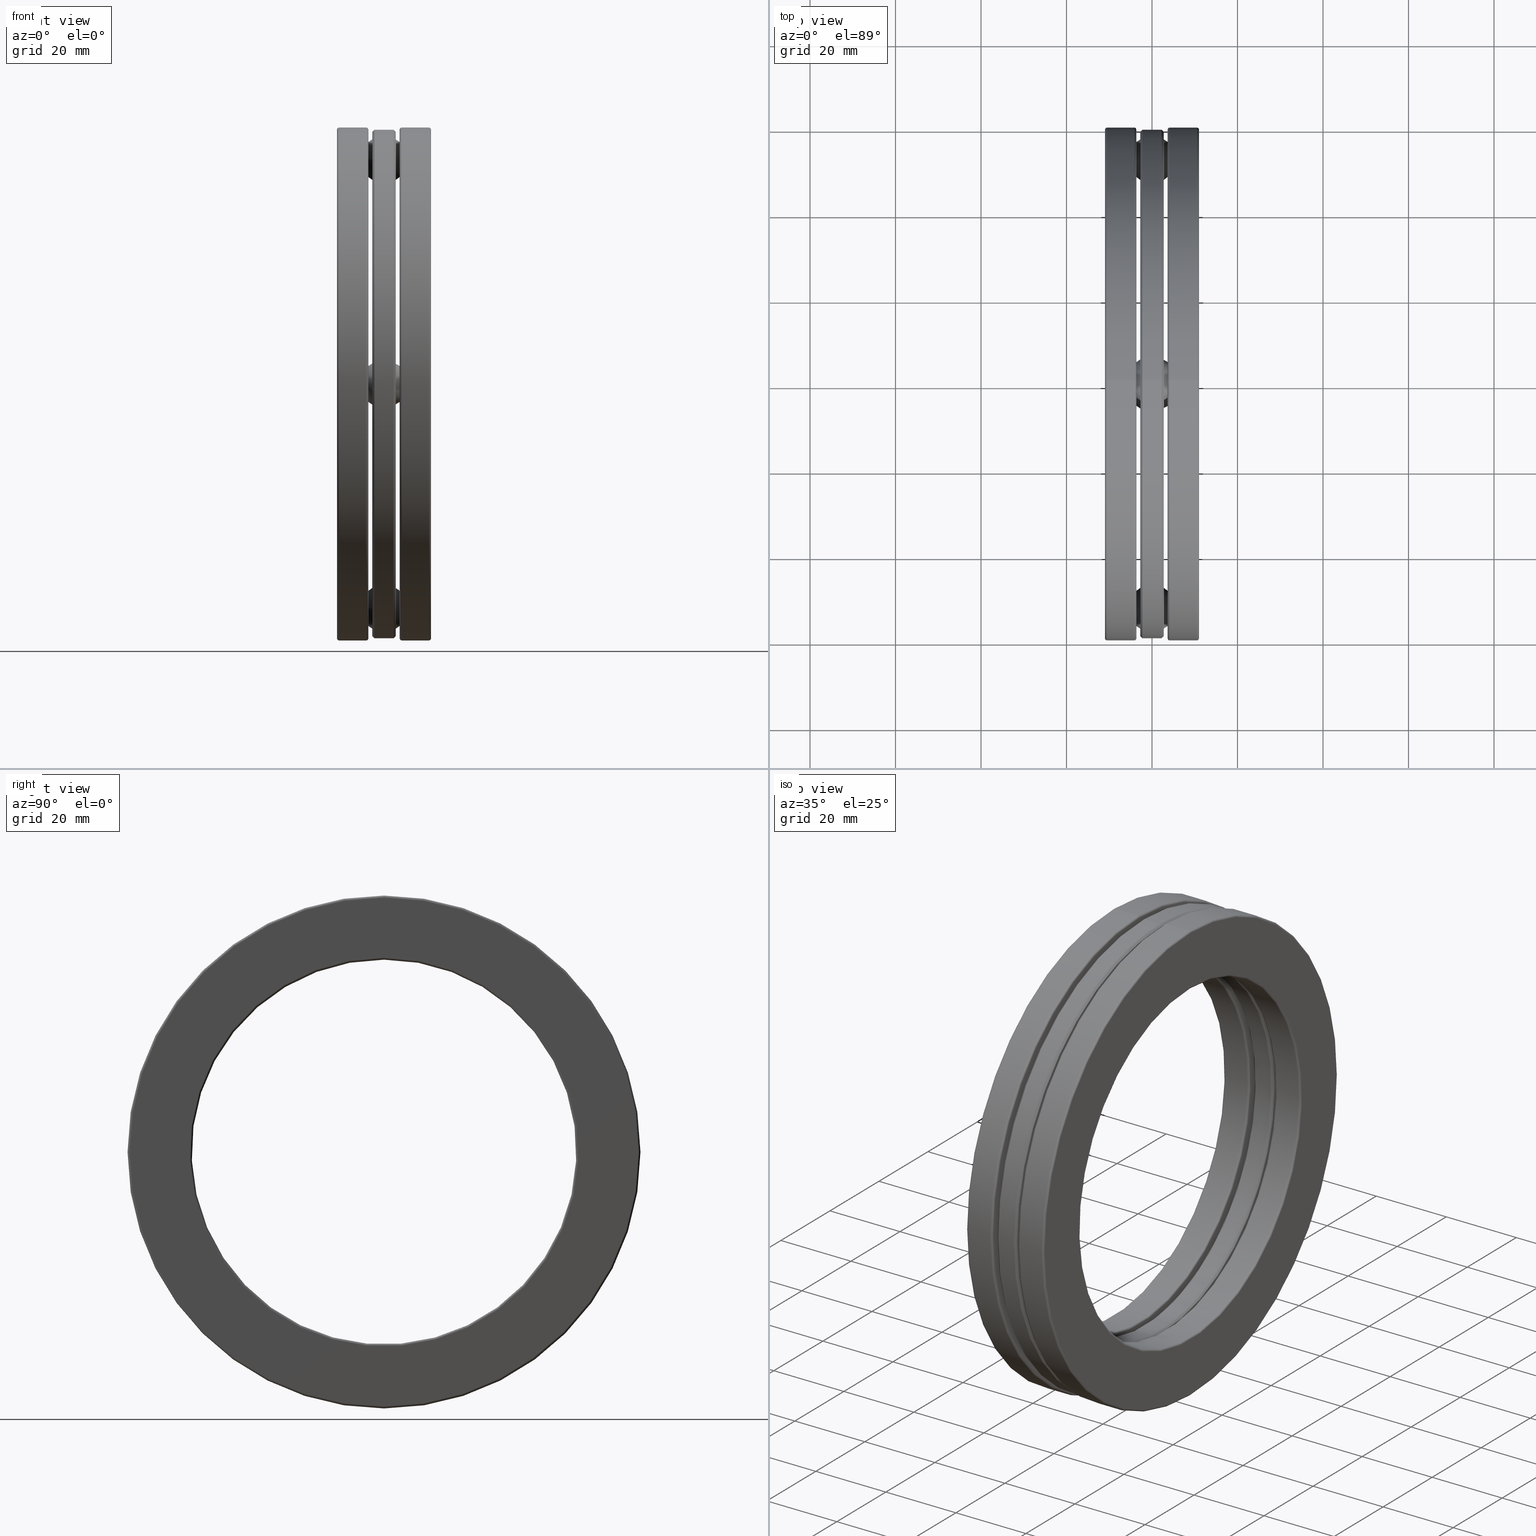
[diagram: canonical four-view strip — front | top / right | iso, engineering-drawing reading convention]
A machine part, canonical four-view strip (front | top / right | iso — engineering-drawing reading convention). The complete STEP part file that produces these views, byte-faithful:
ISO-10303-21;
HEADER;
FILE_DESCRIPTION (( 'STEP AP203' ),
    '1' );
FILE_NAME ('2918-ABB.step',
    '2017-03-07T16:43:11',
    ( '' ),
    ( '' ),
    'SwSTEP 2.0',
    'SolidWorks 2017',
    '' );
FILE_SCHEMA (( 'CONFIG_CONTROL_DESIGN' ));
ENDSEC;

DATA;
#1 = DIRECTION ( 'NONE',  ( -1.000000000000000000, -0.0000000000000000000, -0.0000000000000000000 ) ) ;
#2 = ADVANCED_FACE ( 'NONE', ( #343, #404 ), #292, .T. ) ;
#3 = ORIENTED_EDGE ( 'NONE', *, *, #7, .F. ) ;
#4 = ORIENTED_EDGE ( 'NONE', *, *, #675, .F. ) ;
#5 = AXIS2_PLACEMENT_3D ( 'NONE', #83, #143, #409 ) ;
#6 = SHAPE_DEFINITION_REPRESENTATION ( #544, #397 ) ;
#7 = EDGE_CURVE ( 'NONE', #711, #711, #796, .T. ) ;
#8 = CARTESIAN_POINT ( 'NONE',  ( 0.1443362200000008200, 0.0000000000000000000, 0.0000000000000000000 ) ) ;
#9 = CIRCLE ( 'NONE', #95, 0.2240000000000006200 ) ;
#10 = CALENDAR_DATE ( 2017, 7, 3 ) ;
#11 = PRODUCT ( '2918-ABB', '2918-ABB', '', ( #438 ) ) ;
#12 = DIRECTION ( 'NONE',  ( 0.0000000000000000000, 0.0000000000000000000, 1.000000000000000000 ) ) ;
#13 = DIRECTION ( 'NONE',  ( -1.000000000000000000, -0.0000000000000000000, -0.0000000000000000000 ) ) ;
#14 = ORIENTED_EDGE ( 'NONE', *, *, #46, .F. ) ;
#15 = CLOSED_SHELL ( 'NONE', ( #761, #358, #234, #672, #460, #156, #371, #514, #425, #767 ) ) ;
#16 = AXIS2_PLACEMENT_3D ( 'NONE', #584, #645, #650 ) ;
#17 = AXIS2_PLACEMENT_3D ( 'NONE', #756, #577, #638 ) ;
#18 = TOROIDAL_SURFACE ( 'NONE', #655, 2.066749999999999900, 0.2190000000000000800 ) ;
#19 = DIRECTION ( 'NONE',  ( -1.000000000000000000, -0.0000000000000000000, -0.0000000000000000000 ) ) ;
#20 = DIRECTION ( 'NONE',  ( 0.0000000000000000000, 0.0000000000000000000, 1.000000000000000000 ) ) ;
#21 = AXIS2_PLACEMENT_3D ( 'NONE', #68, #128, #703 ) ;
#22 = DIRECTION ( 'NONE',  ( 0.0000000000000000000, 0.0000000000000000000, 1.000000000000000000 ) ) ;
#23 = CARTESIAN_POINT ( 'NONE',  ( 0.1643362200000008100, 0.0000000000000000000, 0.0000000000000000000 ) ) ;
#24 = ORIENTED_EDGE ( 'NONE', *, *, #780, .F. ) ;
#25 = EDGE_LOOP ( 'NONE', ( #66 ) ) ;
#26 = DIRECTION ( 'NONE',  ( 0.0000000000000000000, 0.0000000000000000000, 1.000000000000000000 ) ) ;
#27 = FACE_BOUND ( 'NONE', #273, .T. ) ;
#28 = CARTESIAN_POINT ( 'NONE',  ( 0.1082500000000000400, 0.0000000000000000000, 1.811500000000000300 ) ) ;
#29 = AXIS2_PLACEMENT_3D ( 'NONE', #192, #1, #270 ) ;
#30 = VERTEX_POINT ( 'NONE', #733 ) ;
#31 = CC_DESIGN_APPROVAL ( #760, ( #520 ) ) ;
#32 = CARTESIAN_POINT ( 'NONE',  ( -0.1082499999999999900, 0.0000000000000000000, 0.0000000000000000000 ) ) ;
#33 = CARTESIAN_POINT ( 'NONE',  ( 0.08825000000000003700, 0.0000000000000000000, 1.791500000000000300 ) ) ;
#34 = AXIS2_PLACEMENT_3D ( 'NONE', #502, #377, #628 ) ;
#35 = FACE_OUTER_BOUND ( 'NONE', #612, .T. ) ;
#36 = EDGE_LOOP ( 'NONE', ( #57 ) ) ;
#37 = ORIENTED_EDGE ( 'NONE', *, *, #780, .T. ) ;
#38 = EDGE_CURVE ( 'NONE', #30, #30, #206, .T. ) ;
#39 = ADVANCED_FACE ( 'NONE', ( #488, #129 ), #641, .T. ) ;
#40 = AXIS2_PLACEMENT_3D ( 'NONE', #390, #523, #331 ) ;
#41 = DIRECTION ( 'NONE',  ( 1.000000000000000000, 0.0000000000000000000, 0.0000000000000000000 ) ) ;
#42 = ADVANCED_FACE ( 'NONE', ( ), #629, .T. ) ;
#43 = DIRECTION ( 'NONE',  ( -1.000000000000000000, -0.0000000000000000000, -0.0000000000000000000 ) ) ;
#44 = CARTESIAN_POINT ( 'NONE',  ( -0.1443362199999998200, 0.0000000000000000000, 0.0000000000000000000 ) ) ;
#45 = ORIENTED_EDGE ( 'NONE', *, *, #630, .F. ) ;
#46 = EDGE_CURVE ( 'NONE', #590, #590, #335, .T. ) ;
#47 = EDGE_LOOP ( 'NONE', ( #816 ) ) ;
#48 = APPROVAL_ROLE ( '' ) ;
#49 = VERTEX_POINT ( 'NONE', #424 ) ;
#50 = PERSON_AND_ORGANIZATION_ROLE ( 'creator' ) ;
#51 = CIRCLE ( 'NONE', #670, 0.2240000000000006200 ) ;
#52 = AXIS2_PLACEMENT_3D ( 'NONE', #217, #656, #22 ) ;
#53 = CARTESIAN_POINT ( 'NONE',  ( 0.1082500000000000400, 0.0000000000000000000, 0.0000000000000000000 ) ) ;
#54 = LOCAL_TIME ( 11, 43, 11.00000000000000000, #777 ) ;
#55 = AXIS2_PLACEMENT_3D ( 'NONE', #503, #800, #797 ) ;
#56 = FACE_OUTER_BOUND ( 'NONE', #428, .T. ) ;
#57 = ORIENTED_EDGE ( 'NONE', *, *, #737, .T. ) ;
#58 = CARTESIAN_POINT ( 'NONE',  ( 0.0000000000000000000, 0.0000000000000000000, 0.0000000000000000000 ) ) ;
#59 = AXIS2_PLACEMENT_3D ( 'NONE', #286, #474, #214 ) ;
#60 = CALENDAR_DATE ( 2017, 7, 3 ) ;
#61 = DIRECTION ( 'NONE',  ( 1.000000000000000000, 0.0000000000000000000, 0.0000000000000000000 ) ) ;
#62 = AXIS2_PLACEMENT_3D ( 'NONE', #180, #632, #247 ) ;
#63 = MANIFOLD_SOLID_BREP ( 'Revolve4', #668 ) ;
#64 = EDGE_LOOP ( 'NONE', ( #4 ) ) ;
#65 = ADVANCED_FACE ( 'NONE', ( #427, #56 ), #823, .F. ) ;
#66 = ORIENTED_EDGE ( 'NONE', *, *, #159, .T. ) ;
#67 = CYLINDRICAL_SURFACE ( 'NONE', #431, 0.2240000000000006200 ) ;
#68 = CARTESIAN_POINT ( 'NONE',  ( 0.4330000000000002700, 0.0000000000000000000, 0.0000000000000000000 ) ) ;
#69 = VERTEX_POINT ( 'NONE', #319 ) ;
#70 = DIRECTION ( 'NONE',  ( -1.000000000000000000, -0.0000000000000000000, -0.0000000000000000000 ) ) ;
#71 = FACE_OUTER_BOUND ( 'NONE', #406, .T. ) ;
#72 = PERSON_AND_ORGANIZATION ( #211, #639 ) ;
#73 = CYLINDRICAL_SURFACE ( 'NONE', #330, 2.362000000000000500 ) ;
#74 = ORIENTED_EDGE ( 'NONE', *, *, #793, .F. ) ;
#75 = CLOSED_SHELL ( 'NONE', ( #39, #551, #383, #113, #792, #684, #223, #442, #395, #705, #635, #307 ) ) ;
#76 = DIRECTION ( 'NONE',  ( 0.0000000000000000000, 0.0000000000000000000, 1.000000000000000000 ) ) ;
#77 = CARTESIAN_POINT ( 'NONE',  ( -0.1082500000000000000, 2.066749999999999900, 0.0000000000000000000 ) ) ;
#78 = AXIS2_PLACEMENT_3D ( 'NONE', #320, #389, #255 ) ;
#79 = DIRECTION ( 'NONE',  ( 0.0000000000000000000, 0.0000000000000000000, 1.000000000000000000 ) ) ;
#80 = FACE_OUTER_BOUND ( 'NONE', #47, .T. ) ;
#81 = EDGE_CURVE ( 'NONE', #471, #471, #518, .T. ) ;
#82 = FACE_OUTER_BOUND ( 'NONE', #723, .T. ) ;
#83 = CARTESIAN_POINT ( 'NONE',  ( -0.1082500000000000000, 2.164805717116214000E-014, 2.066749999999999900 ) ) ;
#84 = DIRECTION ( 'NONE',  ( 0.0000000000000000000, -1.000000000000000000, 3.658724991514628200E-015 ) ) ;
#85 = EDGE_CURVE ( 'NONE', #636, #636, #160, .T. ) ;
#86 = CIRCLE ( 'NONE', #312, 2.231455967093216600 ) ;
#87 = DIRECTION ( 'NONE',  ( 0.0000000000000000000, 0.0000000000000000000, 1.000000000000000000 ) ) ;
#88 = EDGE_LOOP ( 'NONE', ( #356 ) ) ;
#89 = FACE_OUTER_BOUND ( 'NONE', #36, .T. ) ;
#90 = DIRECTION ( 'NONE',  ( -1.000000000000000000, -0.0000000000000000000, -0.0000000000000000000 ) ) ;
#91 = CARTESIAN_POINT ( 'NONE',  ( 0.08825000000000000900, 0.0000000000000000000, 0.0000000000000000000 ) ) ;
#92 = CIRCLE ( 'NONE', #626, 1.902044032906784500 ) ;
#93 = CARTESIAN_POINT ( 'NONE',  ( 0.4130000000000009200, 0.0000000000000000000, 0.0000000000000000000 ) ) ;
#94 = SPHERICAL_SURFACE ( 'NONE', #787, 0.2190000000000000300 ) ;
#95 = AXIS2_PLACEMENT_3D ( 'NONE', #77, #599, #709 ) ;
#96 = ORIENTED_EDGE ( 'NONE', *, *, #168, .F. ) ;
#97 = ORIENTED_EDGE ( 'NONE', *, *, #701, .T. ) ;
#98 = FACE_OUTER_BOUND ( 'NONE', #818, .T. ) ;
#99 = CIRCLE ( 'NONE', #591, 2.362000000000000100 ) ;
#100 = CARTESIAN_POINT ( 'NONE',  ( -0.1643362199999998400, 0.0000000000000000000, 2.362000000000000100 ) ) ;
#101 = MANIFOLD_SOLID_BREP ( 'CirPattern4[3]', #574 ) ;
#102 = CARTESIAN_POINT ( 'NONE',  ( -0.4130000000000000300, 0.0000000000000000000, 2.362000000000000100 ) ) ;
#103 = AXIS2_PLACEMENT_3D ( 'NONE', #530, #657, #204 ) ;
#104 = EDGE_LOOP ( 'NONE', ( #508 ) ) ;
#105 = EDGE_LOOP ( 'NONE', ( #734 ) ) ;
#106 = CARTESIAN_POINT ( 'NONE',  ( 0.4330000000000002700, 5.371890014789404200E-017, 0.0000000000000000000 ) ) ;
#107 = FACE_OUTER_BOUND ( 'NONE', #595, .T. ) ;
#108 = DIRECTION ( 'NONE',  ( -1.000000000000000000, -0.0000000000000000000, -0.0000000000000000000 ) ) ;
#109 = ADVANCED_FACE ( 'NONE', ( #35, #475 ), #73, .T. ) ;
#110 = AXIS2_PLACEMENT_3D ( 'NONE', #332, #517, #527 ) ;
#111 = FACE_OUTER_BOUND ( 'NONE', #789, .T. ) ;
#112 = DIRECTION ( 'NONE',  ( 0.0000000000000000000, 0.0000000000000000000, 1.000000000000000000 ) ) ;
#113 = ADVANCED_FACE ( 'NONE', ( #507, #730, #153, #697, #300, #433 ), #499, .T. ) ;
#114 = VERTEX_POINT ( 'NONE', #443 ) ;
#115 = CARTESIAN_POINT ( 'NONE',  ( -0.1082500000000000000, -2.066749999999999900, 0.2240000000000006200 ) ) ;
#116 = DIRECTION ( 'NONE',  ( 1.000000000000000000, -0.0000000000000000000, 0.0000000000000000000 ) ) ;
#117 = EDGE_LOOP ( 'NONE', ( #367 ) ) ;
#118 = CC_DESIGN_PERSON_AND_ORGANIZATION_ASSIGNMENT ( #525, #50, ( #808 ) ) ;
#119 = ORIENTED_EDGE ( 'NONE', *, *, #241, .T. ) ;
#120 = FACE_OUTER_BOUND ( 'NONE', #649, .T. ) ;
#121 = FACE_OUTER_BOUND ( 'NONE', #717, .T. ) ;
#122 = VERTEX_POINT ( 'NONE', #681 ) ;
#123 = CARTESIAN_POINT ( 'NONE',  ( 0.4130000000000009800, 0.0000000000000000000, 0.0000000000000000000 ) ) ;
#124 = AXIS2_PLACEMENT_3D ( 'NONE', #581, #812, #193 ) ;
#125 = DIRECTION ( 'NONE',  ( -1.000000000000000000, -0.0000000000000000000, -0.0000000000000000000 ) ) ;
#126 = FACE_OUTER_BOUND ( 'NONE', #434, .T. ) ;
#127 = EDGE_CURVE ( 'NONE', #201, #201, #762, .T. ) ;
#128 = DIRECTION ( 'NONE',  ( -1.000000000000000000, -0.0000000000000000000, -0.0000000000000000000 ) ) ;
#129 = FACE_BOUND ( 'NONE', #707, .T. ) ;
#130 = ORIENTED_EDGE ( 'NONE', *, *, #674, .T. ) ;
#131 = FACE_OUTER_BOUND ( 'NONE', #188, .T. ) ;
#132 = CIRCLE ( 'NONE', #238, 1.791500000000000300 ) ;
#133 = DATE_AND_TIME ( #583, #739 ) ;
#134 = ORIENTED_EDGE ( 'NONE', *, *, #162, .T. ) ;
#135 = AXIS2_PLACEMENT_3D ( 'NONE', #483, #224, #485 ) ;
#136 = FACE_OUTER_BOUND ( 'NONE', #769, .T. ) ;
#137 = CIRCLE ( 'NONE', #640, 0.2240000000000006200 ) ;
#138 = DIRECTION ( 'NONE',  ( 1.000000000000000000, 0.0000000000000000000, 0.0000000000000000000 ) ) ;
#139 = PERSON_AND_ORGANIZATION ( #211, #639 ) ;
#140 = DIRECTION ( 'NONE',  ( 1.000000000000000000, 0.0000000000000000000, 0.0000000000000000000 ) ) ;
#141 = CLOSED_SHELL ( 'NONE', ( #432 ) ) ;
#142 = EDGE_LOOP ( 'NONE', ( #680 ) ) ;
#143 = DIRECTION ( 'NONE',  ( -1.000000000000000000, -0.0000000000000000000, -0.0000000000000000000 ) ) ;
#144 = EDGE_LOOP ( 'NONE', ( #798 ) ) ;
#145 = DIRECTION ( 'NONE',  ( -1.000000000000000000, -0.0000000000000000000, -0.0000000000000000000 ) ) ;
#146 = DIRECTION ( 'NONE',  ( -0.0000000000000000000, 0.0000000000000000000, -1.000000000000000000 ) ) ;
#147 = AXIS2_PLACEMENT_3D ( 'NONE', #722, #140, #720 ) ;
#148 = DIRECTION ( 'NONE',  ( -1.000000000000000000, -0.0000000000000000000, -0.0000000000000000000 ) ) ;
#149 = DIRECTION ( 'NONE',  ( -1.000000000000000000, -0.0000000000000000000, -0.0000000000000000000 ) ) ;
#150 = AXIS2_PLACEMENT_3D ( 'NONE', #664, #149, #470 ) ;
#151 = CARTESIAN_POINT ( 'NONE',  ( -0.08825000000000000900, 0.0000000000000000000, 2.341999999999999600 ) ) ;
#152 = EDGE_CURVE ( 'NONE', #359, #359, #86, .T. ) ;
#153 = FACE_BOUND ( 'NONE', #88, .T. ) ;
#154 = CIRCLE ( 'NONE', #78, 1.902044032906783600 ) ;
#155 = FACE_OUTER_BOUND ( 'NONE', #283, .T. ) ;
#156 = ADVANCED_FACE ( 'NONE', ( #600, #80 ), #169, .F. ) ;
#157 = DATE_AND_TIME ( #353, #582 ) ;
#158 = AXIS2_PLACEMENT_3D ( 'NONE', #268, #771, #539 ) ;
#159 = EDGE_CURVE ( 'NONE', #513, #513, #633, .T. ) ;
#160 = CIRCLE ( 'NONE', #55, 2.342000000000000500 ) ;
#161 = CARTESIAN_POINT ( 'NONE',  ( 0.1443362200000007100, 0.0000000000000000000, 2.231455967093215700 ) ) ;
#162 = EDGE_CURVE ( 'NONE', #451, #451, #522, .T. ) ;
#163 = ORIENTED_EDGE ( 'NONE', *, *, #85, .F. ) ;
#164 = CARTESIAN_POINT ( 'NONE',  ( -0.1643362199999998400, 0.0000000000000000000, 0.0000000000000000000 ) ) ;
#165 = CIRCLE ( 'NONE', #62, 2.231455967093215700 ) ;
#166 = CARTESIAN_POINT ( 'NONE',  ( -0.1082500000000000100, 0.0000000000000000000, 0.0000000000000000000 ) ) ;
#167 = ADVANCED_FACE ( 'NONE', ( #533, #596 ), #237, .T. ) ;
#168 = EDGE_CURVE ( 'NONE', #774, #774, #651, .T. ) ;
#169 = PLANE ( 'NONE',  #412 ) ;
#170 =( LENGTH_UNIT ( ) NAMED_UNIT ( * ) SI_UNIT ( $, .METRE. ) );
#171 = CARTESIAN_POINT ( 'NONE',  ( 0.0000000000000000000, 0.0000000000000000000, 0.0000000000000000000 ) ) ;
#172 = VERTEX_POINT ( 'NONE', #516 ) ;
#173 = PERSON_AND_ORGANIZATION_ROLE ( 'creator' ) ;
#174 = CARTESIAN_POINT ( 'NONE',  ( 0.08825000000000000900, 0.0000000000000000000, 2.341999999999999600 ) ) ;
#175 = EDGE_LOOP ( 'NONE', ( #799 ) ) ;
#176 = AXIS2_PLACEMENT_3D ( 'NONE', #369, #693, #683 ) ;
#177 = ORIENTED_EDGE ( 'NONE', *, *, #228, .F. ) ;
#178 = CARTESIAN_POINT ( 'NONE',  ( 0.1082500000000000100, 2.066749999999999900, 0.0000000000000000000 ) ) ;
#179 = FACE_OUTER_BOUND ( 'NONE', #772, .T. ) ;
#180 = CARTESIAN_POINT ( 'NONE',  ( 0.1443362200000007100, 0.0000000000000000000, 0.0000000000000000000 ) ) ;
#181 = AXIS2_PLACEMENT_3D ( 'NONE', #663, #19, #602 ) ;
#182 = PERSON_AND_ORGANIZATION_ROLE ( 'design_supplier' ) ;
#183 = DIRECTION ( 'NONE',  ( -1.000000000000000000, -0.0000000000000000000, -0.0000000000000000000 ) ) ;
#184 = EDGE_CURVE ( 'NONE', #340, #340, #165, .T. ) ;
#185 = COORDINATED_UNIVERSAL_TIME_OFFSET ( 5, 0, .BEHIND. ) ;
#186 = ORIENTED_EDGE ( 'NONE', *, *, #228, .T. ) ;
#187 = ORIENTED_EDGE ( 'NONE', *, *, #259, .T. ) ;
#188 = EDGE_LOOP ( 'NONE', ( #496 ) ) ;
#189 = DIRECTION ( 'NONE',  ( 0.0000000000000000000, 0.0000000000000000000, -1.000000000000000000 ) ) ;
#190 = FACE_OUTER_BOUND ( 'NONE', #415, .T. ) ;
#191 = AXIS2_PLACEMENT_3D ( 'NONE', #245, #564, #561 ) ;
#192 = CARTESIAN_POINT ( 'NONE',  ( 0.1643362200000007300, 0.0000000000000000000, 0.0000000000000000000 ) ) ;
#193 = DIRECTION ( 'NONE',  ( 0.0000000000000000000, 0.0000000000000000000, 1.000000000000000000 ) ) ;
#194 = LOCAL_TIME ( 11, 43, 11.00000000000000000, #185 ) ;
#195 = AXIS2_PLACEMENT_3D ( 'NONE', #32, #362, #491 ) ;
#196 = ORIENTED_EDGE ( 'NONE', *, *, #405, .T. ) ;
#197 = ORIENTED_EDGE ( 'NONE', *, *, #793, .T. ) ;
#198 = CIRCLE ( 'NONE', #696, 1.771499999999999900 ) ;
#199 = DIRECTION ( 'NONE',  ( 0.0000000000000000000, 0.0000000000000000000, 1.000000000000000000 ) ) ;
#200 = EDGE_CURVE ( 'NONE', #122, #122, #757, .T. ) ;
#201 = VERTEX_POINT ( 'NONE', #736 ) ;
#202 = DIRECTION ( 'NONE',  ( 0.0000000000000000000, 0.0000000000000000000, 1.000000000000000000 ) ) ;
#203 = CONICAL_SURFACE ( 'NONE', #135, 2.341999999999999600, 0.7853981633974503900 ) ;
#204 = DIRECTION ( 'NONE',  ( -1.000000000000000000, 0.0000000000000000000, 0.0000000000000000000 ) ) ;
#205 = DIRECTION ( 'NONE',  ( 0.0000000000000000000, 0.0000000000000000000, 1.000000000000000000 ) ) ;
#206 = CIRCLE ( 'NONE', #16, 2.321999999999999600 ) ;
#207 = CARTESIAN_POINT ( 'NONE',  ( -0.1643362199999997300, 0.0000000000000000000, 0.0000000000000000000 ) ) ;
#208 = EDGE_LOOP ( 'NONE', ( #210 ) ) ;
#209 =( GEOMETRIC_REPRESENTATION_CONTEXT ( 3 ) GLOBAL_UNCERTAINTY_ASSIGNED_CONTEXT ( ( #227 ) ) GLOBAL_UNIT_ASSIGNED_CONTEXT ( ( #386, #512, #452 ) ) REPRESENTATION_CONTEXT ( 'NONE', 'WORKASPACE' ) );
#210 = ORIENTED_EDGE ( 'NONE', *, *, #737, .F. ) ;
#211 = PERSON ( 'UNSPECIFIED', 'UNSPECIFIED', 'UNSPECIFIED', ('UNSPECIFIED'), ('UNSPECIFIED'), ('UNSPECIFIED') ) ;
#212 = CIRCLE ( 'NONE', #613, 1.811500000000000300 ) ;
#213 = CARTESIAN_POINT ( 'NONE',  ( 0.1643362200000007300, 0.0000000000000000000, 0.0000000000000000000 ) ) ;
#214 = DIRECTION ( 'NONE',  ( 0.0000000000000000000, 0.0000000000000000000, -1.000000000000000000 ) ) ;
#215 = CARTESIAN_POINT ( 'NONE',  ( 1.365923996832131600E-016, 0.0000000000000000000, 0.0000000000000000000 ) ) ;
#216 = EDGE_CURVE ( 'NONE', #820, #820, #99, .T. ) ;
#217 = CARTESIAN_POINT ( 'NONE',  ( 0.0000000000000000000, 0.0000000000000000000, 0.0000000000000000000 ) ) ;
#218 = ORIENTED_EDGE ( 'NONE', *, *, #617, .F. ) ;
#219 = PLANE ( 'NONE',  #59 ) ;
#220 = FACE_OUTER_BOUND ( 'NONE', #552, .T. ) ;
#221 = CARTESIAN_POINT ( 'NONE',  ( -0.1443362199999997900, 0.0000000000000000000, 1.902044032906783600 ) ) ;
#222 = VERTEX_POINT ( 'NONE', #430 ) ;
#223 = ADVANCED_FACE ( 'NONE', ( #500, #578 ), #346, .F. ) ;
#224 = DIRECTION ( 'NONE',  ( -1.000000000000000000, -0.0000000000000000000, -0.0000000000000000000 ) ) ;
#225 = FACE_OUTER_BOUND ( 'NONE', #365, .T. ) ;
#226 = AXIS2_PLACEMENT_3D ( 'NONE', #482, #347, #416 ) ;
#227 = UNCERTAINTY_MEASURE_WITH_UNIT (LENGTH_MEASURE( 1.000000000000000100E-005 ), #386, 'distance_accuracy_value', 'NONE');
#228 = EDGE_CURVE ( 'NONE', #437, #437, #294, .T. ) ;
#229 = EDGE_LOOP ( 'NONE', ( #534 ) ) ;
#230 = ORIENTED_EDGE ( 'NONE', *, *, #350, .F. ) ;
#231 = CARTESIAN_POINT ( 'NONE',  ( -0.4329999999999999400, 0.0000000000000000000, 2.342000000000000500 ) ) ;
#232 = CC_DESIGN_PERSON_AND_ORGANIZATION_ASSIGNMENT ( #72, #173, ( #520 ) ) ;
#233 = DIRECTION ( 'NONE',  ( -1.000000000000000000, -0.0000000000000000000, -0.0000000000000000000 ) ) ;
#234 = ADVANCED_FACE ( 'NONE', ( #643, #478 ), #673, .T. ) ;
#235 = ORIENTED_EDGE ( 'NONE', *, *, #46, .T. ) ;
#236 = ORIENTED_EDGE ( 'NONE', *, *, #259, .F. ) ;
#237 = PLANE ( 'NONE',  #243 ) ;
#238 = AXIS2_PLACEMENT_3D ( 'NONE', #494, #420, #616 ) ;
#239 = CARTESIAN_POINT ( 'NONE',  ( 0.1643362200000007300, 0.0000000000000000000, 2.362000000000000500 ) ) ;
#240 = FACE_OUTER_BOUND ( 'NONE', #457, .T. ) ;
#241 = EDGE_CURVE ( 'NONE', #480, #480, #212, .T. ) ;
#242 = DIRECTION ( 'NONE',  ( 0.0000000000000000000, 0.0000000000000000000, -1.000000000000000000 ) ) ;
#243 = AXIS2_PLACEMENT_3D ( 'NONE', #106, #306, #505 ) ;
#244 = APPLICATION_CONTEXT ( 'configuration controlled 3d designs of mechanical parts and assemblies' ) ;
#245 = CARTESIAN_POINT ( 'NONE',  ( 0.0000000000000000000, 0.0000000000000000000, 0.0000000000000000000 ) ) ;
#246 = ADVANCED_FACE ( 'NONE', ( #121, #220 ), #744, .F. ) ;
#247 = DIRECTION ( 'NONE',  ( 0.0000000000000000000, 0.0000000000000000000, 1.000000000000000000 ) ) ;
#248 = DATE_AND_TIME ( #751, #258 ) ;
#249 = APPROVAL_STATUS ( 'not_yet_approved' ) ;
#250 = EDGE_LOOP ( 'NONE', ( #235 ) ) ;
#251 = ORIENTED_EDGE ( 'NONE', *, *, #567, .T. ) ;
#252 = CARTESIAN_POINT ( 'NONE',  ( -0.1082500000000000000, 0.2240000000000222600, 2.066749999999997600 ) ) ;
#253 = CARTESIAN_POINT ( 'NONE',  ( -0.08824999999999996700, 0.0000000000000000000, 0.0000000000000000000 ) ) ;
#254 = FACE_OUTER_BOUND ( 'NONE', #445, .T. ) ;
#255 = DIRECTION ( 'NONE',  ( 0.0000000000000000000, 0.0000000000000000000, 1.000000000000000000 ) ) ;
#256 = FACE_OUTER_BOUND ( 'NONE', #384, .T. ) ;
#257 = DATE_AND_TIME ( #10, #54 ) ;
#258 = LOCAL_TIME ( 11, 43, 11.00000000000000000, #309 ) ;
#259 = EDGE_CURVE ( 'NONE', #738, #738, #398, .T. ) ;
#260 = EDGE_LOOP ( 'NONE', ( #14 ) ) ;
#261 = CARTESIAN_POINT ( 'NONE',  ( -0.1082500000000000100, 0.0000000000000000000, 0.0000000000000000000 ) ) ;
#262 = CLOSED_SHELL ( 'NONE', ( #486, #392, #559, #246, #334, #167, #322, #109, #2, #65 ) ) ;
#263 = CYLINDRICAL_SURFACE ( 'NONE', #557, 2.341999999999999600 ) ;
#264 = DIRECTION ( 'NONE',  ( 0.0000000000000000000, 0.0000000000000000000, 1.000000000000000000 ) ) ;
#265 = VERTEX_POINT ( 'NONE', #102 ) ;
#266 = FACE_OUTER_BOUND ( 'NONE', #281, .T. ) ;
#267 = FACE_OUTER_BOUND ( 'NONE', #788, .T. ) ;
#268 = CARTESIAN_POINT ( 'NONE',  ( -0.1082499999999999900, -7.241002578701187200E-018, 0.0000000000000000000 ) ) ;
#269 = FACE_OUTER_BOUND ( 'NONE', #175, .T. ) ;
#270 = DIRECTION ( 'NONE',  ( 0.0000000000000000000, 0.0000000000000000000, 1.000000000000000000 ) ) ;
#271 = PLANE ( 'NONE',  #158 ) ;
#272 = AXIS2_PLACEMENT_3D ( 'NONE', #93, #352, #786 ) ;
#273 = EDGE_LOOP ( 'NONE', ( #689 ) ) ;
#274 = EDGE_LOOP ( 'NONE', ( #435 ) ) ;
#275 = FACE_OUTER_BOUND ( 'NONE', #229, .T. ) ;
#276 = AXIS2_PLACEMENT_3D ( 'NONE', #819, #336, #458 ) ;
#277 = CARTESIAN_POINT ( 'NONE',  ( -0.1082500000000000000, -2.066749999999999900, 0.0000000000000000000 ) ) ;
#278 = CYLINDRICAL_SURFACE ( 'NONE', #52, 1.791500000000000300 ) ;
#279 = LENGTH_MEASURE_WITH_UNIT ( LENGTH_MEASURE( 0.02539999999999999900 ), #170 );
#280 = DIRECTION ( 'NONE',  ( -1.000000000000000000, -0.0000000000000000000, -0.0000000000000000000 ) ) ;
#281 = EDGE_LOOP ( 'NONE', ( #662 ) ) ;
#282 = AXIS2_PLACEMENT_3D ( 'NONE', #23, #665, #348 ) ;
#283 = EDGE_LOOP ( 'NONE', ( #374 ) ) ;
#284 = CARTESIAN_POINT ( 'NONE',  ( -0.4330393700787400500, -2.066749999999999900, 0.0000000000000000000 ) ) ;
#285 = VERTEX_POINT ( 'NONE', #429 ) ;
#286 = CARTESIAN_POINT ( 'NONE',  ( -0.1443362199999997700, -1.790665817529892900E-017, 0.0000000000000000000 ) ) ;
#287 = DIRECTION ( 'NONE',  ( 1.000000000000000000, 0.0000000000000000000, 0.0000000000000000000 ) ) ;
#288 = AXIS2_PLACEMENT_3D ( 'NONE', #824, #700, #199 ) ;
#289 = CARTESIAN_POINT ( 'NONE',  ( 0.4330000000000002200, 0.0000000000000000000, 2.342000000000000500 ) ) ;
#290 = VERTEX_POINT ( 'NONE', #310 ) ;
#291 = DIRECTION ( 'NONE',  ( 0.0000000000000000000, 0.0000000000000000000, 1.000000000000000000 ) ) ;
#292 = TOROIDAL_SURFACE ( 'NONE', #29, 2.342000000000000500, 0.02000000000000004200 ) ;
#293 = DIRECTION ( 'NONE',  ( 1.000000000000000000, 0.0000000000000000000, 0.0000000000000000000 ) ) ;
#294 = CIRCLE ( 'NONE', #17, 2.342000000000000500 ) ;
#295 = DIRECTION ( 'NONE',  ( 0.0000000000000000000, 1.000000000000000000, -1.097617497454388500E-014 ) ) ;
#296 = CIRCLE ( 'NONE', #195, 1.811500000000000300 ) ;
#297 = CARTESIAN_POINT ( 'NONE',  ( -0.1443362199999998500, 0.0000000000000000000, 2.342000000000000500 ) ) ;
#298 = FACE_OUTER_BOUND ( 'NONE', #678, .T. ) ;
#299 = APPROVAL_PERSON_ORGANIZATION ( #495, #341, #440 ) ;
#300 = FACE_BOUND ( 'NONE', #724, .T. ) ;
#301 = ORIENTED_EDGE ( 'NONE', *, *, #487, .F. ) ;
#302 = ORIENTED_EDGE ( 'NONE', *, *, #127, .T. ) ;
#303 = CIRCLE ( 'NONE', #288, 1.771499999999999900 ) ;
#304 = DIRECTION ( 'NONE',  ( 0.0000000000000000000, 0.0000000000000000000, -1.000000000000000000 ) ) ;
#305 = DIRECTION ( 'NONE',  ( 1.000000000000000000, 0.0000000000000000000, 0.0000000000000000000 ) ) ;
#306 = DIRECTION ( 'NONE',  ( 1.000000000000000000, 0.0000000000000000000, 0.0000000000000000000 ) ) ;
#307 = ADVANCED_FACE ( 'NONE', ( #556, #447 ), #407, .F. ) ;
#308 = CC_DESIGN_APPROVAL ( #454, ( #677 ) ) ;
#309 = COORDINATED_UNIVERSAL_TIME_OFFSET ( 5, 0, .BEHIND. ) ;
#310 = CARTESIAN_POINT ( 'NONE',  ( -0.1443362199999997700, 0.0000000000000000000, 1.791500000000000300 ) ) ;
#311 = DIRECTION ( 'NONE',  ( -1.000000000000000000, -0.0000000000000000000, -0.0000000000000000000 ) ) ;
#312 = AXIS2_PLACEMENT_3D ( 'NONE', #44, #624, #802 ) ;
#313 = ORIENTED_EDGE ( 'NONE', *, *, #152, .F. ) ;
#314 = CARTESIAN_POINT ( 'NONE',  ( -0.1643362199999997600, 0.0000000000000000000, 0.0000000000000000000 ) ) ;
#315 = CARTESIAN_POINT ( 'NONE',  ( -0.4329999999999998800, -5.371890014789390000E-017, 0.0000000000000000000 ) ) ;
#316 = AXIS2_PLACEMENT_3D ( 'NONE', #207, #713, #468 ) ;
#317 = CIRCLE ( 'NONE', #181, 1.771499999999999900 ) ;
#318 = EDGE_CURVE ( 'NONE', #222, #222, #198, .T. ) ;
#319 = CARTESIAN_POINT ( 'NONE',  ( 0.4130000000000009200, 0.0000000000000000000, 2.362000000000000500 ) ) ;
#320 = CARTESIAN_POINT ( 'NONE',  ( -0.1443362199999997900, 0.0000000000000000000, 0.0000000000000000000 ) ) ;
#321 = ORIENTED_EDGE ( 'NONE', *, *, #674, .F. ) ;
#322 = ADVANCED_FACE ( 'NONE', ( #275, #179 ), #735, .T. ) ;
#323 = EDGE_LOOP ( 'NONE', ( #251 ) ) ;
#324 = EDGE_LOOP ( 'NONE', ( #372 ) ) ;
#325 = DIRECTION ( 'NONE',  ( 1.000000000000000000, -0.0000000000000000000, -0.0000000000000000000 ) ) ;
#326 = AXIS2_PLACEMENT_3D ( 'NONE', #391, #453, #821 ) ;
#327 = FACE_OUTER_BOUND ( 'NONE', #476, .T. ) ;
#328 = CARTESIAN_POINT ( 'NONE',  ( -0.4329999999999999400, 0.0000000000000000000, 0.0000000000000000000 ) ) ;
#329 = DIRECTION ( 'NONE',  ( 0.0000000000000000000, 0.0000000000000000000, 1.000000000000000000 ) ) ;
#330 = AXIS2_PLACEMENT_3D ( 'NONE', #171, #368, #685 ) ;
#331 = DIRECTION ( 'NONE',  ( -1.000000000000000000, 0.0000000000000000000, 0.0000000000000000000 ) ) ;
#332 = CARTESIAN_POINT ( 'NONE',  ( 0.4130000000000010300, 0.0000000000000000000, 0.0000000000000000000 ) ) ;
#333 = AXIS2_PLACEMENT_3D ( 'NONE', #715, #592, #532 ) ;
#334 = ADVANCED_FACE ( 'NONE', ( #396, #719 ), #387, .T. ) ;
#335 = CIRCLE ( 'NONE', #21, 1.791500000000000100 ) ;
#336 = DIRECTION ( 'NONE',  ( 1.000000000000000000, 0.0000000000000000000, 0.0000000000000000000 ) ) ;
#337 = EDGE_LOOP ( 'NONE', ( #344 ) ) ;
#338 = FACE_BOUND ( 'NONE', #679, .T. ) ;
#339 = CARTESIAN_POINT ( 'NONE',  ( 0.0000000000000000000, 0.0000000000000000000, 0.0000000000000000000 ) ) ;
#340 = VERTEX_POINT ( 'NONE', #161 ) ;
#341 = APPROVAL ( #625, 'UNSPECIFIED' ) ;
#342 = DIRECTION ( 'NONE',  ( -1.000000000000000000, -0.0000000000000000000, -0.0000000000000000000 ) ) ;
#343 = FACE_OUTER_BOUND ( 'NONE', #763, .T. ) ;
#344 = ORIENTED_EDGE ( 'NONE', *, *, #558, .T. ) ;
#345 = ORIENTED_EDGE ( 'NONE', *, *, #318, .F. ) ;
#346 = CONICAL_SURFACE ( 'NONE', #573, 1.811500000000000300, 0.7853981633974496100 ) ;
#347 = DIRECTION ( 'NONE',  ( 0.0000000000000000000, 0.0000000000000000000, 1.000000000000000000 ) ) ;
#348 = DIRECTION ( 'NONE',  ( 0.0000000000000000000, 0.0000000000000000000, 1.000000000000000000 ) ) ;
#349 = FACE_OUTER_BOUND ( 'NONE', #477, .T. ) ;
#350 = EDGE_CURVE ( 'NONE', #462, #462, #154, .T. ) ;
#351 = CARTESIAN_POINT ( 'NONE',  ( 0.1082500000000000400, 0.0000000000000000000, 0.0000000000000000000 ) ) ;
#352 = DIRECTION ( 'NONE',  ( -1.000000000000000000, -0.0000000000000000000, -0.0000000000000000000 ) ) ;
#353 = CALENDAR_DATE ( 2017, 7, 3 ) ;
#354 = CARTESIAN_POINT ( 'NONE',  ( 0.0000000000000000000, 0.0000000000000000000, 0.0000000000000000000 ) ) ;
#355 = DIRECTION ( 'NONE',  ( 1.000000000000000000, 0.0000000000000000000, 0.0000000000000000000 ) ) ;
#356 = ORIENTED_EDGE ( 'NONE', *, *, #814, .F. ) ;
#357 = CC_DESIGN_DATE_AND_TIME_ASSIGNMENT ( #257, #634, ( #677 ) ) ;
#358 = ADVANCED_FACE ( 'NONE', ( #807, #98 ), #766, .T. ) ;
#359 = VERTEX_POINT ( 'NONE', #366 ) ;
#360 = CARTESIAN_POINT ( 'NONE',  ( 0.1082500000000000100, 2.164805717116214000E-014, 2.066749999999999900 ) ) ;
#361 = AXIS2_PLACEMENT_3D ( 'NONE', #123, #311, #647 ) ;
#362 = DIRECTION ( 'NONE',  ( -1.000000000000000000, -0.0000000000000000000, -0.0000000000000000000 ) ) ;
#363 = EDGE_CURVE ( 'NONE', #702, #702, #303, .T. ) ;
#364 = FACE_BOUND ( 'NONE', #385, .T. ) ;
#365 = EDGE_LOOP ( 'NONE', ( #497 ) ) ;
#366 = CARTESIAN_POINT ( 'NONE',  ( -0.1443362199999998200, 0.0000000000000000000, 2.231455967093216600 ) ) ;
#367 = ORIENTED_EDGE ( 'NONE', *, *, #363, .T. ) ;
#368 = DIRECTION ( 'NONE',  ( -1.000000000000000000, -0.0000000000000000000, -0.0000000000000000000 ) ) ;
#369 = CARTESIAN_POINT ( 'NONE',  ( 0.1443362200000008500, 0.0000000000000000000, 0.0000000000000000000 ) ) ;
#370 = APPLICATION_CONTEXT ( 'configuration controlled 3d designs of mechanical parts and assemblies' ) ;
#371 = ADVANCED_FACE ( 'NONE', ( #120, #107 ), #554, .T. ) ;
#372 = ORIENTED_EDGE ( 'NONE', *, *, #450, .T. ) ;
#373 = AXIS2_PLACEMENT_3D ( 'NONE', #166, #619, #20 ) ;
#374 = ORIENTED_EDGE ( 'NONE', *, *, #350, .T. ) ;
#375 = AXIS2_PLACEMENT_3D ( 'NONE', #91, #280, #726 ) ;
#376 = FACE_BOUND ( 'NONE', #64, .T. ) ;
#377 = DIRECTION ( 'NONE',  ( -1.000000000000000000, -0.0000000000000000000, -0.0000000000000000000 ) ) ;
#378 = FACE_OUTER_BOUND ( 'NONE', #706, .T. ) ;
#379 = DIMENSIONAL_EXPONENTS ( 1.000000000000000000, 0.0000000000000000000, 0.0000000000000000000, 0.0000000000000000000, 0.0000000000000000000, 0.0000000000000000000, 0.0000000000000000000 ) ;
#380 = FACE_OUTER_BOUND ( 'NONE', #208, .T. ) ;
#381 = CC_DESIGN_PERSON_AND_ORGANIZATION_ASSIGNMENT ( #139, #691, ( #677 ) ) ;
#382 = DIRECTION ( 'NONE',  ( 1.000000000000000000, 0.0000000000000000000, 0.0000000000000000000 ) ) ;
#383 = ADVANCED_FACE ( 'NONE', ( #785, #131 ), #263, .T. ) ;
#384 = EDGE_LOOP ( 'NONE', ( #345 ) ) ;
#385 = EDGE_LOOP ( 'NONE', ( #24 ) ) ;
#386 =( CONVERSION_BASED_UNIT ( 'INCH', #279 ) LENGTH_UNIT ( ) NAMED_UNIT ( #379 ) );
#387 = TOROIDAL_SURFACE ( 'NONE', #110, 1.791500000000000100, 0.01999999999999965000 ) ;
#388 = VERTEX_POINT ( 'NONE', #489 ) ;
#389 = DIRECTION ( 'NONE',  ( -1.000000000000000000, -0.0000000000000000000, -0.0000000000000000000 ) ) ;
#390 = CARTESIAN_POINT ( 'NONE',  ( 1.365923996832131600E-016, 2.164805717116214000E-014, 2.066749999999999900 ) ) ;
#391 = CARTESIAN_POINT ( 'NONE',  ( -0.1443362199999997700, -1.790665817529892900E-017, 0.0000000000000000000 ) ) ;
#392 = ADVANCED_FACE ( 'NONE', ( #765, #89 ), #456, .F. ) ;
#393 = EDGE_LOOP ( 'NONE', ( #196 ) ) ;
#394 = EDGE_LOOP ( 'NONE', ( #659 ) ) ;
#395 = ADVANCED_FACE ( 'NONE', ( #605, #546 ), #67, .F. ) ;
#396 = FACE_OUTER_BOUND ( 'NONE', #260, .T. ) ;
#397 = ADVANCED_BREP_SHAPE_REPRESENTATION ( '2918-ABB', ( #741, #652, #63, #469, #571, #101, #791, #682 ), #209 ) ;
#398 = CIRCLE ( 'NONE', #403, 1.791500000000000300 ) ;
#399 = CC_DESIGN_PERSON_AND_ORGANIZATION_ASSIGNMENT ( #686, #182, ( #808 ) ) ;
#400 = CIRCLE ( 'NONE', #5, 0.2240000000000006200 ) ;
#401 = APPROVAL_ROLE ( '' ) ;
#402 = APPROVAL_PERSON_ORGANIZATION ( #572, #454, #401 ) ;
#403 = AXIS2_PLACEMENT_3D ( 'NONE', #253, #183, #112 ) ;
#404 = FACE_OUTER_BOUND ( 'NONE', #716, .T. ) ;
#405 = EDGE_CURVE ( 'NONE', #285, #285, #671, .T. ) ;
#406 = EDGE_LOOP ( 'NONE', ( #815 ) ) ;
#407 = CYLINDRICAL_SURFACE ( 'NONE', #465, 0.2240000000000006200 ) ;
#408 = AXIS2_PLACEMENT_3D ( 'NONE', #178, #116, #242 ) ;
#409 = DIRECTION ( 'NONE',  ( 0.0000000000000000000, 1.000000000000000000, -9.756599977372341400E-015 ) ) ;
#410 = CARTESIAN_POINT ( 'NONE',  ( 1.365923996832131600E-016, -2.066749999999999900, 0.0000000000000000000 ) ) ;
#411 = DIRECTION ( 'NONE',  ( 0.0000000000000000000, 0.0000000000000000000, -1.000000000000000000 ) ) ;
#412 = AXIS2_PLACEMENT_3D ( 'NONE', #315, #622, #806 ) ;
#413 = CARTESIAN_POINT ( 'NONE',  ( -0.1082500000000000000, -7.216019057054046500E-015, -2.066749999999999900 ) ) ;
#414 = CARTESIAN_POINT ( 'NONE',  ( -0.4129999999999999200, 0.0000000000000000000, 0.0000000000000000000 ) ) ;
#415 = EDGE_LOOP ( 'NONE', ( #187 ) ) ;
#416 = DIRECTION ( 'NONE',  ( -1.000000000000000000, 0.0000000000000000000, 0.0000000000000000000 ) ) ;
#417 = EDGE_LOOP ( 'NONE', ( #37 ) ) ;
#418 = DIRECTION ( 'NONE',  ( -1.000000000000000000, -0.0000000000000000000, -0.0000000000000000000 ) ) ;
#419 = SPHERICAL_SURFACE ( 'NONE', #103, 0.2190000000000000300 ) ;
#420 = DIRECTION ( 'NONE',  ( -1.000000000000000000, -0.0000000000000000000, -0.0000000000000000000 ) ) ;
#421 = AXIS2_PLACEMENT_3D ( 'NONE', #414, #479, #604 ) ;
#422 = FACE_OUTER_BOUND ( 'NONE', #274, .T. ) ;
#423 = CIRCLE ( 'NONE', #492, 2.362000000000000100 ) ;
#424 = CARTESIAN_POINT ( 'NONE',  ( -0.1082500000000000000, 2.066749999999999900, -0.2240000000000006200 ) ) ;
#425 = ADVANCED_FACE ( 'NONE', ( #790, #136 ), #589, .T. ) ;
#426 = DIRECTION ( 'NONE',  ( 0.0000000000000000000, 0.0000000000000000000, 1.000000000000000000 ) ) ;
#427 = FACE_BOUND ( 'NONE', #142, .T. ) ;
#428 = EDGE_LOOP ( 'NONE', ( #186 ) ) ;
#429 = CARTESIAN_POINT ( 'NONE',  ( 0.1082500000000000100, -0.2240000000000078000, -2.066749999999999400 ) ) ;
#430 = CARTESIAN_POINT ( 'NONE',  ( -0.1643362199999997600, 0.0000000000000000000, 1.771499999999999900 ) ) ;
#431 = AXIS2_PLACEMENT_3D ( 'NONE', #759, #325, #585 ) ;
#432 = ADVANCED_FACE ( 'NONE', ( ), #419, .T. ) ;
#433 = FACE_OUTER_BOUND ( 'NONE', #104, .T. ) ;
#434 = EDGE_LOOP ( 'NONE', ( #3 ) ) ;
#435 = ORIENTED_EDGE ( 'NONE', *, *, #216, .T. ) ;
#436 = CARTESIAN_POINT ( 'NONE',  ( -0.08825000000000000900, 0.0000000000000000000, 0.0000000000000000000 ) ) ;
#437 = VERTEX_POINT ( 'NONE', #728 ) ;
#438 = MECHANICAL_CONTEXT ( 'NONE', #244, 'mechanical' ) ;
#439 = CARTESIAN_POINT ( 'NONE',  ( -0.1082499999999999900, 0.0000000000000000000, 0.0000000000000000000 ) ) ;
#440 = APPROVAL_ROLE ( '' ) ;
#441 = FACE_OUTER_BOUND ( 'NONE', #337, .T. ) ;
#442 = ADVANCED_FACE ( 'NONE', ( #376, #27, #509, #338, #364, #254 ), #271, .F. ) ;
#443 = CARTESIAN_POINT ( 'NONE',  ( 0.1443362200000008200, 0.0000000000000000000, 1.902044032906784500 ) ) ;
#444 = ORIENTED_EDGE ( 'NONE', *, *, #776, .F. ) ;
#445 = EDGE_LOOP ( 'NONE', ( #740 ) ) ;
#446 = AXIS2_PLACEMENT_3D ( 'NONE', #459, #61, #189 ) ;
#447 = FACE_OUTER_BOUND ( 'NONE', #144, .T. ) ;
#448 = CARTESIAN_POINT ( 'NONE',  ( -0.4329999999999998800, 0.0000000000000000000, 1.791499999999999600 ) ) ;
#449 = DIRECTION ( 'NONE',  ( 0.0000000000000000000, -1.000000000000000000, 3.658724991514628200E-015 ) ) ;
#450 = EDGE_CURVE ( 'NONE', #49, #49, #9, .T. ) ;
#451 = VERTEX_POINT ( 'NONE', #151 ) ;
#452 =( NAMED_UNIT ( * ) SI_UNIT ( $, .STERADIAN. ) SOLID_ANGLE_UNIT ( ) );
#453 = DIRECTION ( 'NONE',  ( 1.000000000000000000, 0.0000000000000000000, 0.0000000000000000000 ) ) ;
#454 = APPROVAL ( #694, 'UNSPECIFIED' ) ;
#455 = APPROVAL_DATE_TIME ( #618, #341 ) ;
#456 = PLANE ( 'NONE',  #446 ) ;
#457 = EDGE_LOOP ( 'NONE', ( #313 ) ) ;
#458 = DIRECTION ( 'NONE',  ( 0.0000000000000000000, 0.0000000000000000000, -1.000000000000000000 ) ) ;
#459 = CARTESIAN_POINT ( 'NONE',  ( 0.1443362200000006800, 4.028998089442305600E-017, 0.0000000000000000000 ) ) ;
#460 = ADVANCED_FACE ( 'NONE', ( #126, #441 ), #608, .T. ) ;
#461 = ADVANCED_FACE ( 'NONE', ( ), #94, .T. ) ;
#462 = VERTEX_POINT ( 'NONE', #221 ) ;
#463 = AXIS2_PLACEMENT_3D ( 'NONE', #687, #41, #304 ) ;
#464 = CIRCLE ( 'NONE', #549, 2.362000000000000500 ) ;
#465 = AXIS2_PLACEMENT_3D ( 'NONE', #810, #382, #449 ) ;
#466 = DIRECTION ( 'NONE',  ( 1.000000000000000000, 0.0000000000000000000, 0.0000000000000000000 ) ) ;
#467 = ORIENTED_EDGE ( 'NONE', *, *, #159, .F. ) ;
#468 = DIRECTION ( 'NONE',  ( 0.0000000000000000000, 0.0000000000000000000, 1.000000000000000000 ) ) ;
#469 = MANIFOLD_SOLID_BREP ( 'CirPattern4[1]', #141 ) ;
#470 = DIRECTION ( 'NONE',  ( 0.0000000000000000000, 0.0000000000000000000, 1.000000000000000000 ) ) ;
#471 = VERTEX_POINT ( 'NONE', #289 ) ;
#472 = DIRECTION ( 'NONE',  ( -1.000000000000000000, 0.0000000000000000000, 0.0000000000000000000 ) ) ;
#473 = CC_DESIGN_PERSON_AND_ORGANIZATION_ASSIGNMENT ( #779, #752, ( #11 ) ) ;
#474 = DIRECTION ( 'NONE',  ( 1.000000000000000000, 0.0000000000000000000, 0.0000000000000000000 ) ) ;
#475 = FACE_OUTER_BOUND ( 'NONE', #586, .T. ) ;
#476 = EDGE_LOOP ( 'NONE', ( #230 ) ) ;
#477 = EDGE_LOOP ( 'NONE', ( #467 ) ) ;
#478 = FACE_OUTER_BOUND ( 'NONE', #526, .T. ) ;
#479 = DIRECTION ( 'NONE',  ( -1.000000000000000000, -0.0000000000000000000, -0.0000000000000000000 ) ) ;
#480 = VERTEX_POINT ( 'NONE', #28 ) ;
#481 = CONICAL_SURFACE ( 'NONE', #773, 1.811500000000000300, 0.7853981633974500600 ) ;
#482 = CARTESIAN_POINT ( 'NONE',  ( 1.365923996832131600E-016, 2.066749999999999900, 0.0000000000000000000 ) ) ;
#483 = CARTESIAN_POINT ( 'NONE',  ( 0.08825000000000000900, 0.0000000000000000000, 0.0000000000000000000 ) ) ;
#484 = PERSON_AND_ORGANIZATION ( #211, #639 ) ;
#485 = DIRECTION ( 'NONE',  ( 0.0000000000000000000, 0.0000000000000000000, 1.000000000000000000 ) ) ;
#486 = ADVANCED_FACE ( 'NONE', ( #269, #380 ), #750, .F. ) ;
#487 = EDGE_CURVE ( 'NONE', #388, #388, #570, .T. ) ;
#488 = FACE_OUTER_BOUND ( 'NONE', #519, .T. ) ;
#489 = CARTESIAN_POINT ( 'NONE',  ( 0.1082500000000000100, -2.066749999999999900, 0.2240000000000006200 ) ) ;
#490 = EDGE_LOOP ( 'NONE', ( #96 ) ) ;
#491 = DIRECTION ( 'NONE',  ( 0.0000000000000000000, 0.0000000000000000000, 1.000000000000000000 ) ) ;
#492 = AXIS2_PLACEMENT_3D ( 'NONE', #784, #542, #541 ) ;
#493 = CARTESIAN_POINT ( 'NONE',  ( 0.1082500000000000100, 2.066749999999999900, -0.2240000000000006200 ) ) ;
#494 = CARTESIAN_POINT ( 'NONE',  ( -0.1443362199999997700, 0.0000000000000000000, 0.0000000000000000000 ) ) ;
#495 = PERSON_AND_ORGANIZATION ( #211, #639 ) ;
#496 = ORIENTED_EDGE ( 'NONE', *, *, #162, .F. ) ;
#497 = ORIENTED_EDGE ( 'NONE', *, *, #630, .T. ) ;
#498 = ORIENTED_EDGE ( 'NONE', *, *, #318, .T. ) ;
#499 = PLANE ( 'NONE',  #463 ) ;
#500 = FACE_BOUND ( 'NONE', #603, .T. ) ;
#501 = SPHERICAL_SURFACE ( 'NONE', #226, 0.2190000000000000300 ) ;
#502 = CARTESIAN_POINT ( 'NONE',  ( -0.1643362199999998400, 0.0000000000000000000, 0.0000000000000000000 ) ) ;
#503 = CARTESIAN_POINT ( 'NONE',  ( -0.1443362199999998500, 0.0000000000000000000, 0.0000000000000000000 ) ) ;
#504 = VERTEX_POINT ( 'NONE', #627 ) ;
#505 = DIRECTION ( 'NONE',  ( 0.0000000000000000000, 0.0000000000000000000, -1.000000000000000000 ) ) ;
#506 = AXIS2_PLACEMENT_3D ( 'NONE', #548, #355, #26 ) ;
#507 = FACE_BOUND ( 'NONE', #642, .T. ) ;
#508 = ORIENTED_EDGE ( 'NONE', *, *, #38, .F. ) ;
#509 = FACE_BOUND ( 'NONE', #611, .T. ) ;
#510 = DIRECTION ( 'NONE',  ( 0.0000000000000000000, 0.0000000000000000000, 1.000000000000000000 ) ) ;
#511 = VERTEX_POINT ( 'NONE', #239 ) ;
#512 =( NAMED_UNIT ( * ) PLANE_ANGLE_UNIT ( ) SI_UNIT ( $, .RADIAN. ) );
#513 = VERTEX_POINT ( 'NONE', #33 ) ;
#514 = ADVANCED_FACE ( 'NONE', ( #298, #256 ), #606, .F. ) ;
#515 = AXIS2_PLACEMENT_3D ( 'NONE', #328, #770, #264 ) ;
#516 = CARTESIAN_POINT ( 'NONE',  ( 0.1643362200000008100, 0.0000000000000000000, 1.771499999999999900 ) ) ;
#517 = DIRECTION ( 'NONE',  ( -1.000000000000000000, -0.0000000000000000000, -0.0000000000000000000 ) ) ;
#518 = CIRCLE ( 'NONE', #699, 2.342000000000000500 ) ;
#519 = EDGE_LOOP ( 'NONE', ( #134 ) ) ;
#520 = PRODUCT_DEFINITION ( 'UNKNOWN', '', #808, #661 ) ;
#521 = EDGE_LOOP ( 'NONE', ( #783 ) ) ;
#522 = CIRCLE ( 'NONE', #758, 2.341999999999999600 ) ;
#523 = DIRECTION ( 'NONE',  ( 0.0000000000000000000, -1.000000000000000000, 1.047444401652940000E-014 ) ) ;
#524 = CYLINDRICAL_SURFACE ( 'NONE', #811, 0.2240000000000006200 ) ;
#525 = PERSON_AND_ORGANIZATION ( #211, #639 ) ;
#526 = EDGE_LOOP ( 'NONE', ( #536 ) ) ;
#527 = DIRECTION ( 'NONE',  ( 0.0000000000000000000, 0.0000000000000000000, 1.000000000000000000 ) ) ;
#528 = ORIENTED_EDGE ( 'NONE', *, *, #617, .T. ) ;
#529 = CC_DESIGN_APPROVAL ( #341, ( #808 ) ) ;
#530 = CARTESIAN_POINT ( 'NONE',  ( 1.365923996832131600E-016, -7.216019057054046500E-015, -2.066749999999999900 ) ) ;
#531 = AXIS2_PLACEMENT_3D ( 'NONE', #354, #667, #205 ) ;
#532 = DIRECTION ( 'NONE',  ( 0.0000000000000000000, 0.0000000000000000000, 1.000000000000000000 ) ) ;
#533 = FACE_BOUND ( 'NONE', #250, .T. ) ;
#534 = ORIENTED_EDGE ( 'NONE', *, *, #614, .F. ) ;
#535 = ORIENTED_EDGE ( 'NONE', *, *, #168, .T. ) ;
#536 = ORIENTED_EDGE ( 'NONE', *, *, #85, .T. ) ;
#537 = CC_DESIGN_DATE_AND_TIME_ASSIGNMENT ( #133, #748, ( #520 ) ) ;
#538 = VERTEX_POINT ( 'NONE', #817 ) ;
#539 = DIRECTION ( 'NONE',  ( 0.0000000000000000000, 0.0000000000000000000, -1.000000000000000000 ) ) ;
#540 = DIRECTION ( 'NONE',  ( -1.000000000000000000, -0.0000000000000000000, -0.0000000000000000000 ) ) ;
#541 = DIRECTION ( 'NONE',  ( 0.0000000000000000000, 0.0000000000000000000, 1.000000000000000000 ) ) ;
#542 = DIRECTION ( 'NONE',  ( -1.000000000000000000, -0.0000000000000000000, -0.0000000000000000000 ) ) ;
#543 = ORIENTED_EDGE ( 'NONE', *, *, #450, .F. ) ;
#544 = PRODUCT_DEFINITION_SHAPE ( 'NONE', 'NONE',  #520 ) ;
#545 = EDGE_LOOP ( 'NONE', ( #301 ) ) ;
#546 = FACE_OUTER_BOUND ( 'NONE', #324, .T. ) ;
#547 = CARTESIAN_POINT ( 'NONE',  ( 0.4130000000000010300, 0.0000000000000000000, 1.771499999999999900 ) ) ;
#548 = CARTESIAN_POINT ( 'NONE',  ( 0.1082500000000000100, -2.066749999999999900, 0.0000000000000000000 ) ) ;
#549 = AXIS2_PLACEMENT_3D ( 'NONE', #213, #782, #725 ) ;
#550 = CIRCLE ( 'NONE', #150, 1.791499999999999600 ) ;
#551 = ADVANCED_FACE ( 'NONE', ( #666, #82 ), #203, .T. ) ;
#552 = EDGE_LOOP ( 'NONE', ( #660 ) ) ;
#553 = ORIENTED_EDGE ( 'NONE', *, *, #776, .T. ) ;
#554 = TOROIDAL_SURFACE ( 'NONE', #124, 1.791499999999999600, 0.01999999999999985500 ) ;
#555 = DIRECTION ( 'NONE',  ( -1.000000000000000000, -0.0000000000000000000, -0.0000000000000000000 ) ) ;
#556 = FACE_OUTER_BOUND ( 'NONE', #393, .T. ) ;
#557 = AXIS2_PLACEMENT_3D ( 'NONE', #58, #125, #579 ) ;
#558 = EDGE_CURVE ( 'NONE', #265, #265, #423, .T. ) ;
#559 = ADVANCED_FACE ( 'NONE', ( #267, #378 ), #712, .T. ) ;
#560 = CARTESIAN_POINT ( 'NONE',  ( -0.1082500000000000000, -0.2240000000000078000, -2.066749999999999400 ) ) ;
#561 = DIRECTION ( 'NONE',  ( 0.0000000000000000000, 0.0000000000000000000, 1.000000000000000000 ) ) ;
#562 = ORIENTED_EDGE ( 'NONE', *, *, #81, .T. ) ;
#563 = ORIENTED_EDGE ( 'NONE', *, *, #587, .F. ) ;
#564 = DIRECTION ( 'NONE',  ( -1.000000000000000000, -0.0000000000000000000, -0.0000000000000000000 ) ) ;
#565 = VERTEX_POINT ( 'NONE', #448 ) ;
#566 = CIRCLE ( 'NONE', #272, 2.362000000000000500 ) ;
#567 = EDGE_CURVE ( 'NONE', #746, #746, #615, .T. ) ;
#568 = SECURITY_CLASSIFICATION_LEVEL ( 'unclassified' ) ;
#569 = DIRECTION ( 'NONE',  ( 0.0000000000000000000, 0.0000000000000000000, 1.000000000000000000 ) ) ;
#570 = CIRCLE ( 'NONE', #506, 0.2240000000000006200 ) ;
#571 = MANIFOLD_SOLID_BREP ( 'CirPattern4[2]', #631 ) ;
#572 = PERSON_AND_ORGANIZATION ( #211, #639 ) ;
#573 = AXIS2_PLACEMENT_3D ( 'NONE', #439, #690, #731 ) ;
#574 = CLOSED_SHELL ( 'NONE', ( #42 ) ) ;
#575 = EDGE_LOOP ( 'NONE', ( #218 ) ) ;
#576 = CARTESIAN_POINT ( 'NONE',  ( 0.0000000000000000000, 0.0000000000000000000, 0.0000000000000000000 ) ) ;
#577 = DIRECTION ( 'NONE',  ( -1.000000000000000000, -0.0000000000000000000, -0.0000000000000000000 ) ) ;
#578 = FACE_OUTER_BOUND ( 'NONE', #417, .T. ) ;
#579 = DIRECTION ( 'NONE',  ( 0.0000000000000000000, 0.0000000000000000000, 1.000000000000000000 ) ) ;
#580 = PRODUCT_RELATED_PRODUCT_CATEGORY ( 'detail', '', ( #11 ) ) ;
#581 = CARTESIAN_POINT ( 'NONE',  ( -0.4129999999999999200, 0.0000000000000000000, 0.0000000000000000000 ) ) ;
#582 = LOCAL_TIME ( 11, 43, 11.00000000000000000, #729 ) ;
#583 = CALENDAR_DATE ( 2017, 7, 3 ) ;
#584 = CARTESIAN_POINT ( 'NONE',  ( 0.1082499999999999900, 0.0000000000000000000, 0.0000000000000000000 ) ) ;
#585 = DIRECTION ( 'NONE',  ( 0.0000000000000000000, 0.0000000000000000000, -1.000000000000000000 ) ) ;
#586 = EDGE_LOOP ( 'NONE', ( #621 ) ) ;
#587 = EDGE_CURVE ( 'NONE', #538, #538, #727, .T. ) ;
#588 = ORIENTED_EDGE ( 'NONE', *, *, #241, .F. ) ;
#589 = TOROIDAL_SURFACE ( 'NONE', #316, 1.791500000000000300, 0.02000000000000014600 ) ;
#590 = VERTEX_POINT ( 'NONE', #795 ) ;
#591 = AXIS2_PLACEMENT_3D ( 'NONE', #164, #555, #426 ) ;
#592 = DIRECTION ( 'NONE',  ( -1.000000000000000000, -0.0000000000000000000, -0.0000000000000000000 ) ) ;
#593 = EDGE_LOOP ( 'NONE', ( #197 ) ) ;
#594 = CARTESIAN_POINT ( 'NONE',  ( 0.1082500000000000100, -7.216019057054046500E-015, -2.066749999999999900 ) ) ;
#595 = EDGE_LOOP ( 'NONE', ( #563 ) ) ;
#596 = FACE_OUTER_BOUND ( 'NONE', #620, .T. ) ;
#597 = AXIS2_PLACEMENT_3D ( 'NONE', #339, #418, #87 ) ;
#598 = VERTEX_POINT ( 'NONE', #637 ) ;
#599 = DIRECTION ( 'NONE',  ( -1.000000000000000000, -0.0000000000000000000, -0.0000000000000000000 ) ) ;
#600 = FACE_BOUND ( 'NONE', #575, .T. ) ;
#601 = ORIENTED_EDGE ( 'NONE', *, *, #487, .T. ) ;
#602 = DIRECTION ( 'NONE',  ( 0.0000000000000000000, 0.0000000000000000000, 1.000000000000000000 ) ) ;
#603 = EDGE_LOOP ( 'NONE', ( #236 ) ) ;
#604 = DIRECTION ( 'NONE',  ( 0.0000000000000000000, 0.0000000000000000000, 1.000000000000000000 ) ) ;
#605 = FACE_OUTER_BOUND ( 'NONE', #781, .T. ) ;
#606 = CYLINDRICAL_SURFACE ( 'NONE', #597, 1.771499999999999900 ) ;
#607 = CARTESIAN_POINT ( 'NONE',  ( -0.08824999999999996700, 0.0000000000000000000, 1.791500000000000300 ) ) ;
#608 = TOROIDAL_SURFACE ( 'NONE', #333, 2.342000000000000500, 0.01999999999999988900 ) ;
#609 = CC_DESIGN_SECURITY_CLASSIFICATION ( #677, ( #808 ) ) ;
#610 = APPROVAL_PERSON_ORGANIZATION ( #484, #760, #48 ) ;
#611 = EDGE_LOOP ( 'NONE', ( #45 ) ) ;
#612 = EDGE_LOOP ( 'NONE', ( #321 ) ) ;
#613 = AXIS2_PLACEMENT_3D ( 'NONE', #53, #43, #753 ) ;
#614 = EDGE_CURVE ( 'NONE', #69, #69, #566, .T. ) ;
#615 = CIRCLE ( 'NONE', #375, 2.341999999999999600 ) ;
#616 = DIRECTION ( 'NONE',  ( 0.0000000000000000000, 0.0000000000000000000, 1.000000000000000000 ) ) ;
#617 = EDGE_CURVE ( 'NONE', #565, #565, #550, .T. ) ;
#618 = DATE_AND_TIME ( #60, #194 ) ;
#619 = DIRECTION ( 'NONE',  ( -1.000000000000000000, -0.0000000000000000000, -0.0000000000000000000 ) ) ;
#620 = EDGE_LOOP ( 'NONE', ( #669 ) ) ;
#621 = ORIENTED_EDGE ( 'NONE', *, *, #614, .T. ) ;
#622 = DIRECTION ( 'NONE',  ( 1.000000000000000000, 0.0000000000000000000, 0.0000000000000000000 ) ) ;
#623 = DIRECTION ( 'NONE',  ( 0.0000000000000000000, 0.0000000000000000000, 1.000000000000000000 ) ) ;
#624 = DIRECTION ( 'NONE',  ( -1.000000000000000000, -0.0000000000000000000, -0.0000000000000000000 ) ) ;
#625 = APPROVAL_STATUS ( 'not_yet_approved' ) ;
#626 = AXIS2_PLACEMENT_3D ( 'NONE', #8, #342, #76 ) ;
#627 = CARTESIAN_POINT ( 'NONE',  ( 0.1082500000000000100, 0.2240000000000222600, 2.066749999999997600 ) ) ;
#628 = DIRECTION ( 'NONE',  ( 0.0000000000000000000, 0.0000000000000000000, 1.000000000000000000 ) ) ;
#629 = SPHERICAL_SURFACE ( 'NONE', #40, 0.2190000000000000300 ) ;
#630 = EDGE_CURVE ( 'NONE', #708, #708, #400, .T. ) ;
#631 = CLOSED_SHELL ( 'NONE', ( #461 ) ) ;
#632 = DIRECTION ( 'NONE',  ( -1.000000000000000000, -0.0000000000000000000, -0.0000000000000000000 ) ) ;
#633 = CIRCLE ( 'NONE', #768, 1.791500000000000300 ) ;
#634 = DATE_TIME_ROLE ( 'classification_date' ) ;
#635 = ADVANCED_FACE ( 'NONE', ( #822, #111 ), #524, .F. ) ;
#636 = VERTEX_POINT ( 'NONE', #297 ) ;
#637 = CARTESIAN_POINT ( 'NONE',  ( -0.1082499999999999900, 0.0000000000000000000, 1.811500000000000300 ) ) ;
#638 = DIRECTION ( 'NONE',  ( 0.0000000000000000000, 0.0000000000000000000, 1.000000000000000000 ) ) ;
#639 = ORGANIZATION ( 'UNSPECIFIED', 'UNSPECIFIED', '' ) ;
#640 = AXIS2_PLACEMENT_3D ( 'NONE', #277, #90, #79 ) ;
#641 = CONICAL_SURFACE ( 'NONE', #714, 2.321999999999999600, 0.7853981633974496100 ) ;
#642 = EDGE_LOOP ( 'NONE', ( #805 ) ) ;
#643 = FACE_OUTER_BOUND ( 'NONE', #698, .T. ) ;
#644 = ADVANCED_FACE ( 'NONE', ( ), #501, .T. ) ;
#645 = DIRECTION ( 'NONE',  ( -1.000000000000000000, -0.0000000000000000000, -0.0000000000000000000 ) ) ;
#646 = DIRECTION ( 'NONE',  ( 0.0000000000000000000, 0.0000000000000000000, -1.000000000000000000 ) ) ;
#647 = DIRECTION ( 'NONE',  ( 0.0000000000000000000, 0.0000000000000000000, 1.000000000000000000 ) ) ;
#648 = ORIENTED_EDGE ( 'NONE', *, *, #587, .T. ) ;
#649 = EDGE_LOOP ( 'NONE', ( #528 ) ) ;
#650 = DIRECTION ( 'NONE',  ( 0.0000000000000000000, 0.0000000000000000000, 1.000000000000000000 ) ) ;
#651 = CIRCLE ( 'NONE', #408, 0.2240000000000006200 ) ;
#652 = MANIFOLD_SOLID_BREP ( 'Revolve3', #262 ) ;
#653 = VERTEX_POINT ( 'NONE', #115 ) ;
#654 = FACE_BOUND ( 'NONE', #25, .T. ) ;
#655 = AXIS2_PLACEMENT_3D ( 'NONE', #718, #148, #12 ) ;
#656 = DIRECTION ( 'NONE',  ( -1.000000000000000000, -0.0000000000000000000, -0.0000000000000000000 ) ) ;
#657 = DIRECTION ( 'NONE',  ( 0.0000000000000000000, 1.000000000000000000, -3.491481338843133700E-015 ) ) ;
#658 = COORDINATED_UNIVERSAL_TIME_OFFSET ( 5, 0, .BEHIND. ) ;
#659 = ORIENTED_EDGE ( 'NONE', *, *, #152, .T. ) ;
#660 = ORIENTED_EDGE ( 'NONE', *, *, #363, .F. ) ;
#661 = DESIGN_CONTEXT ( 'detailed design', #370, 'design' ) ;
#662 = ORIENTED_EDGE ( 'NONE', *, *, #814, .T. ) ;
#663 = CARTESIAN_POINT ( 'NONE',  ( 0.1643362200000008100, 0.0000000000000000000, 0.0000000000000000000 ) ) ;
#664 = CARTESIAN_POINT ( 'NONE',  ( -0.4329999999999998800, 0.0000000000000000000, 0.0000000000000000000 ) ) ;
#665 = DIRECTION ( 'NONE',  ( -1.000000000000000000, -0.0000000000000000000, -0.0000000000000000000 ) ) ;
#666 = FACE_BOUND ( 'NONE', #105, .T. ) ;
#667 = DIRECTION ( 'NONE',  ( -1.000000000000000000, -0.0000000000000000000, -0.0000000000000000000 ) ) ;
#668 = CLOSED_SHELL ( 'NONE', ( #644 ) ) ;
#669 = ORIENTED_EDGE ( 'NONE', *, *, #81, .F. ) ;
#670 = AXIS2_PLACEMENT_3D ( 'NONE', #360, #293, #295 ) ;
#671 = CIRCLE ( 'NONE', #749, 0.2240000000000006200 ) ;
#672 = ADVANCED_FACE ( 'NONE', ( #71, #422 ), #676, .T. ) ;
#673 = TOROIDAL_SURFACE ( 'NONE', #34, 2.342000000000000100, 0.02000000000000002500 ) ;
#674 = EDGE_CURVE ( 'NONE', #511, #511, #464, .T. ) ;
#675 = EDGE_CURVE ( 'NONE', #809, #809, #794, .T. ) ;
#676 = CYLINDRICAL_SURFACE ( 'NONE', #531, 2.362000000000000100 ) ;
#677 = SECURITY_CLASSIFICATION ( '', '', #568 ) ;
#678 = EDGE_LOOP ( 'NONE', ( #648 ) ) ;
#679 = EDGE_LOOP ( 'NONE', ( #543 ) ) ;
#680 = ORIENTED_EDGE ( 'NONE', *, *, #184, .F. ) ;
#681 = CARTESIAN_POINT ( 'NONE',  ( -0.1082500000000000100, 0.0000000000000000000, 2.321999999999999600 ) ) ;
#682 = AXIS2_PLACEMENT_3D ( 'NONE', #576, #623, #305 ) ;
#683 = DIRECTION ( 'NONE',  ( 0.0000000000000000000, 0.0000000000000000000, 1.000000000000000000 ) ) ;
#684 = ADVANCED_FACE ( 'NONE', ( #349, #190 ), #278, .F. ) ;
#685 = DIRECTION ( 'NONE',  ( 0.0000000000000000000, 0.0000000000000000000, 1.000000000000000000 ) ) ;
#686 = PERSON_AND_ORGANIZATION ( #211, #639 ) ;
#687 = CARTESIAN_POINT ( 'NONE',  ( 0.1082500000000000100, 1.086150386805182000E-017, 0.0000000000000000000 ) ) ;
#688 = ORIENTED_EDGE ( 'NONE', *, *, #216, .F. ) ;
#689 = ORIENTED_EDGE ( 'NONE', *, *, #701, .F. ) ;
#690 = DIRECTION ( 'NONE',  ( -1.000000000000000000, -0.0000000000000000000, -0.0000000000000000000 ) ) ;
#691 = PERSON_AND_ORGANIZATION_ROLE ( 'classification_officer' ) ;
#692 = FACE_OUTER_BOUND ( 'NONE', #754, .T. ) ;
#693 = DIRECTION ( 'NONE',  ( -1.000000000000000000, -0.0000000000000000000, -0.0000000000000000000 ) ) ;
#694 = APPROVAL_STATUS ( 'not_yet_approved' ) ;
#695 = APPROVAL_DATE_TIME ( #157, #454 ) ;
#696 = AXIS2_PLACEMENT_3D ( 'NONE', #314, #70, #329 ) ;
#697 = FACE_BOUND ( 'NONE', #490, .T. ) ;
#698 = EDGE_LOOP ( 'NONE', ( #688 ) ) ;
#699 = AXIS2_PLACEMENT_3D ( 'NONE', #775, #145, #569 ) ;
#700 = DIRECTION ( 'NONE',  ( -1.000000000000000000, -0.0000000000000000000, -0.0000000000000000000 ) ) ;
#701 = EDGE_CURVE ( 'NONE', #653, #653, #137, .T. ) ;
#702 = VERTEX_POINT ( 'NONE', #547 ) ;
#703 = DIRECTION ( 'NONE',  ( 0.0000000000000000000, 0.0000000000000000000, 1.000000000000000000 ) ) ;
#704 = DIRECTION ( 'NONE',  ( 1.000000000000000000, 0.0000000000000000000, 0.0000000000000000000 ) ) ;
#705 = ADVANCED_FACE ( 'NONE', ( #266, #225 ), #801, .F. ) ;
#706 = EDGE_LOOP ( 'NONE', ( #444 ) ) ;
#707 = EDGE_LOOP ( 'NONE', ( #732 ) ) ;
#708 = VERTEX_POINT ( 'NONE', #252 ) ;
#709 = DIRECTION ( 'NONE',  ( 0.0000000000000000000, 0.0000000000000000000, -1.000000000000000000 ) ) ;
#710 = AXIS2_PLACEMENT_3D ( 'NONE', #215, #13, #202 ) ;
#711 = VERTEX_POINT ( 'NONE', #231 ) ;
#712 = TOROIDAL_SURFACE ( 'NONE', #282, 1.791500000000000100, 0.02000000000000001800 ) ;
#713 = DIRECTION ( 'NONE',  ( -1.000000000000000000, -0.0000000000000000000, -0.0000000000000000000 ) ) ;
#714 = AXIS2_PLACEMENT_3D ( 'NONE', #261, #704, #646 ) ;
#715 = CARTESIAN_POINT ( 'NONE',  ( -0.4129999999999999200, 0.0000000000000000000, 0.0000000000000000000 ) ) ;
#716 = EDGE_LOOP ( 'NONE', ( #130 ) ) ;
#717 = EDGE_LOOP ( 'NONE', ( #553 ) ) ;
#718 = CARTESIAN_POINT ( 'NONE',  ( 1.365923996832131600E-016, 0.0000000000000000000, 0.0000000000000000000 ) ) ;
#719 = FACE_OUTER_BOUND ( 'NONE', #117, .T. ) ;
#720 = DIRECTION ( 'NONE',  ( 0.0000000000000000000, 1.000000000000000000, -1.097617497454388500E-014 ) ) ;
#721 = AXIS2_PLACEMENT_3D ( 'NONE', #413, #540, #778 ) ;
#722 = CARTESIAN_POINT ( 'NONE',  ( -0.4330393700787400500, 2.164805717116214000E-014, 2.066749999999999900 ) ) ;
#723 = EDGE_LOOP ( 'NONE', ( #755 ) ) ;
#724 = EDGE_LOOP ( 'NONE', ( #119 ) ) ;
#725 = DIRECTION ( 'NONE',  ( 0.0000000000000000000, 0.0000000000000000000, 1.000000000000000000 ) ) ;
#726 = DIRECTION ( 'NONE',  ( 0.0000000000000000000, 0.0000000000000000000, 1.000000000000000000 ) ) ;
#727 = CIRCLE ( 'NONE', #421, 1.771499999999999900 ) ;
#728 = CARTESIAN_POINT ( 'NONE',  ( 0.1443362200000006800, 0.0000000000000000000, 2.342000000000000500 ) ) ;
#729 = COORDINATED_UNIVERSAL_TIME_OFFSET ( 5, 0, .BEHIND. ) ;
#730 = FACE_BOUND ( 'NONE', #545, .T. ) ;
#731 = DIRECTION ( 'NONE',  ( 0.0000000000000000000, 0.0000000000000000000, 1.000000000000000000 ) ) ;
#732 = ORIENTED_EDGE ( 'NONE', *, *, #200, .F. ) ;
#733 = CARTESIAN_POINT ( 'NONE',  ( 0.1082499999999999900, 0.0000000000000000000, 2.321999999999999600 ) ) ;
#734 = ORIENTED_EDGE ( 'NONE', *, *, #38, .T. ) ;
#735 = TOROIDAL_SURFACE ( 'NONE', #361, 2.342000000000000500, 0.01999999999999965000 ) ;
#736 = CARTESIAN_POINT ( 'NONE',  ( 0.1443362200000008500, 0.0000000000000000000, 1.791499999999999600 ) ) ;
#737 = EDGE_CURVE ( 'NONE', #114, #114, #92, .T. ) ;
#738 = VERTEX_POINT ( 'NONE', #607 ) ;
#739 = LOCAL_TIME ( 11, 43, 11.00000000000000000, #658 ) ;
#740 = ORIENTED_EDGE ( 'NONE', *, *, #200, .T. ) ;
#741 = MANIFOLD_SOLID_BREP ( 'Revolve1', #15 ) ;
#742 = EDGE_LOOP ( 'NONE', ( #74 ) ) ;
#743 = DIRECTION ( 'NONE',  ( 0.0000000000000000000, 0.0000000000000000000, 1.000000000000000000 ) ) ;
#744 = CYLINDRICAL_SURFACE ( 'NONE', #191, 1.771499999999999900 ) ;
#745 = APPLICATION_PROTOCOL_DEFINITION ( 'international standard', 'config_control_design', 1994, #244 ) ;
#746 = VERTEX_POINT ( 'NONE', #174 ) ;
#747 = FACE_BOUND ( 'NONE', #593, .T. ) ;
#748 = DATE_TIME_ROLE ( 'creation_date' ) ;
#749 = AXIS2_PLACEMENT_3D ( 'NONE', #594, #466, #84 ) ;
#750 = TOROIDAL_SURFACE ( 'NONE', #710, 2.066749999999999900, 0.2190000000000000300 ) ;
#751 = CALENDAR_DATE ( 2017, 7, 3 ) ;
#752 = PERSON_AND_ORGANIZATION_ROLE ( 'design_owner' ) ;
#753 = DIRECTION ( 'NONE',  ( 0.0000000000000000000, 0.0000000000000000000, 1.000000000000000000 ) ) ;
#754 = EDGE_LOOP ( 'NONE', ( #588 ) ) ;
#755 = ORIENTED_EDGE ( 'NONE', *, *, #567, .F. ) ;
#756 = CARTESIAN_POINT ( 'NONE',  ( 0.1443362200000006800, 0.0000000000000000000, 0.0000000000000000000 ) ) ;
#757 = CIRCLE ( 'NONE', #373, 2.321999999999999600 ) ;
#758 = AXIS2_PLACEMENT_3D ( 'NONE', #436, #108, #510 ) ;
#759 = CARTESIAN_POINT ( 'NONE',  ( -0.4330393700787400500, 2.066749999999999900, 0.0000000000000000000 ) ) ;
#760 = APPROVAL ( #249, 'UNSPECIFIED' ) ;
#761 = ADVANCED_FACE ( 'NONE', ( #155, #240 ), #18, .F. ) ;
#762 = CIRCLE ( 'NONE', #176, 1.791499999999999600 ) ;
#763 = EDGE_LOOP ( 'NONE', ( #177 ) ) ;
#764 = EDGE_LOOP ( 'NONE', ( #601 ) ) ;
#765 = FACE_BOUND ( 'NONE', #521, .T. ) ;
#766 = PLANE ( 'NONE',  #326 ) ;
#767 = ADVANCED_FACE ( 'NONE', ( #747, #327 ), #219, .T. ) ;
#768 = AXIS2_PLACEMENT_3D ( 'NONE', #803, #233, #743 ) ;
#769 = EDGE_LOOP ( 'NONE', ( #498 ) ) ;
#770 = DIRECTION ( 'NONE',  ( -1.000000000000000000, -0.0000000000000000000, -0.0000000000000000000 ) ) ;
#771 = DIRECTION ( 'NONE',  ( 1.000000000000000000, 0.0000000000000000000, 0.0000000000000000000 ) ) ;
#772 = EDGE_LOOP ( 'NONE', ( #562 ) ) ;
#773 = AXIS2_PLACEMENT_3D ( 'NONE', #351, #138, #411 ) ;
#774 = VERTEX_POINT ( 'NONE', #493 ) ;
#775 = CARTESIAN_POINT ( 'NONE',  ( 0.4330000000000002200, 0.0000000000000000000, 0.0000000000000000000 ) ) ;
#776 = EDGE_CURVE ( 'NONE', #172, #172, #317, .T. ) ;
#777 = COORDINATED_UNIVERSAL_TIME_OFFSET ( 5, 0, .BEHIND. ) ;
#778 = DIRECTION ( 'NONE',  ( 0.0000000000000000000, -1.000000000000000000, 3.658724991514628200E-015 ) ) ;
#779 = PERSON_AND_ORGANIZATION ( #211, #639 ) ;
#780 = EDGE_CURVE ( 'NONE', #598, #598, #296, .T. ) ;
#781 = EDGE_LOOP ( 'NONE', ( #535 ) ) ;
#782 = DIRECTION ( 'NONE',  ( -1.000000000000000000, -0.0000000000000000000, -0.0000000000000000000 ) ) ;
#783 = ORIENTED_EDGE ( 'NONE', *, *, #127, .F. ) ;
#784 = CARTESIAN_POINT ( 'NONE',  ( -0.4130000000000000300, 0.0000000000000000000, 0.0000000000000000000 ) ) ;
#785 = FACE_OUTER_BOUND ( 'NONE', #323, .T. ) ;
#786 = DIRECTION ( 'NONE',  ( 0.0000000000000000000, 0.0000000000000000000, 1.000000000000000000 ) ) ;
#787 = AXIS2_PLACEMENT_3D ( 'NONE', #410, #146, #472 ) ;
#788 = EDGE_LOOP ( 'NONE', ( #302 ) ) ;
#789 = EDGE_LOOP ( 'NONE', ( #97 ) ) ;
#790 = FACE_OUTER_BOUND ( 'NONE', #742, .T. ) ;
#791 = MANIFOLD_SOLID_BREP ( 'CirPattern7', #75 ) ;
#792 = ADVANCED_FACE ( 'NONE', ( #654, #692 ), #481, .F. ) ;
#793 = EDGE_CURVE ( 'NONE', #290, #290, #132, .T. ) ;
#794 = CIRCLE ( 'NONE', #721, 0.2240000000000006200 ) ;
#795 = CARTESIAN_POINT ( 'NONE',  ( 0.4330000000000002700, 0.0000000000000000000, 1.791500000000000100 ) ) ;
#796 = CIRCLE ( 'NONE', #515, 2.342000000000000500 ) ;
#797 = DIRECTION ( 'NONE',  ( 0.0000000000000000000, 0.0000000000000000000, 1.000000000000000000 ) ) ;
#798 = ORIENTED_EDGE ( 'NONE', *, *, #675, .T. ) ;
#799 = ORIENTED_EDGE ( 'NONE', *, *, #184, .T. ) ;
#800 = DIRECTION ( 'NONE',  ( -1.000000000000000000, -0.0000000000000000000, -0.0000000000000000000 ) ) ;
#801 = CYLINDRICAL_SURFACE ( 'NONE', #147, 0.2240000000000006200 ) ;
#802 = DIRECTION ( 'NONE',  ( 0.0000000000000000000, 0.0000000000000000000, 1.000000000000000000 ) ) ;
#803 = CARTESIAN_POINT ( 'NONE',  ( 0.08825000000000003700, 0.0000000000000000000, 0.0000000000000000000 ) ) ;
#804 = APPLICATION_PROTOCOL_DEFINITION ( 'international standard', 'config_control_design', 1994, #370 ) ;
#805 = ORIENTED_EDGE ( 'NONE', *, *, #405, .F. ) ;
#806 = DIRECTION ( 'NONE',  ( 0.0000000000000000000, 0.0000000000000000000, -1.000000000000000000 ) ) ;
#807 = FACE_BOUND ( 'NONE', #394, .T. ) ;
#808 = PRODUCT_DEFINITION_FORMATION_WITH_SPECIFIED_SOURCE ( 'ANY', '', #11, .NOT_KNOWN. ) ;
#809 = VERTEX_POINT ( 'NONE', #560 ) ;
#810 = CARTESIAN_POINT ( 'NONE',  ( -0.4330393700787400500, -7.216019057054046500E-015, -2.066749999999999900 ) ) ;
#811 = AXIS2_PLACEMENT_3D ( 'NONE', #284, #287, #291 ) ;
#812 = DIRECTION ( 'NONE',  ( -1.000000000000000000, -0.0000000000000000000, -0.0000000000000000000 ) ) ;
#813 = APPROVAL_DATE_TIME ( #248, #760 ) ;
#814 = EDGE_CURVE ( 'NONE', #504, #504, #51, .T. ) ;
#815 = ORIENTED_EDGE ( 'NONE', *, *, #558, .F. ) ;
#816 = ORIENTED_EDGE ( 'NONE', *, *, #7, .T. ) ;
#817 = CARTESIAN_POINT ( 'NONE',  ( -0.4129999999999999200, 0.0000000000000000000, 1.771499999999999900 ) ) ;
#818 = EDGE_LOOP ( 'NONE', ( #163 ) ) ;
#819 = CARTESIAN_POINT ( 'NONE',  ( 0.1443362200000006800, 4.028998089442305600E-017, 0.0000000000000000000 ) ) ;
#820 = VERTEX_POINT ( 'NONE', #100 ) ;
#821 = DIRECTION ( 'NONE',  ( 0.0000000000000000000, 0.0000000000000000000, -1.000000000000000000 ) ) ;
#822 = FACE_OUTER_BOUND ( 'NONE', #764, .T. ) ;
#823 = PLANE ( 'NONE',  #276 ) ;
#824 = CARTESIAN_POINT ( 'NONE',  ( 0.4130000000000010300, 0.0000000000000000000, 0.0000000000000000000 ) ) ;
ENDSEC;
END-ISO-10303-21;
